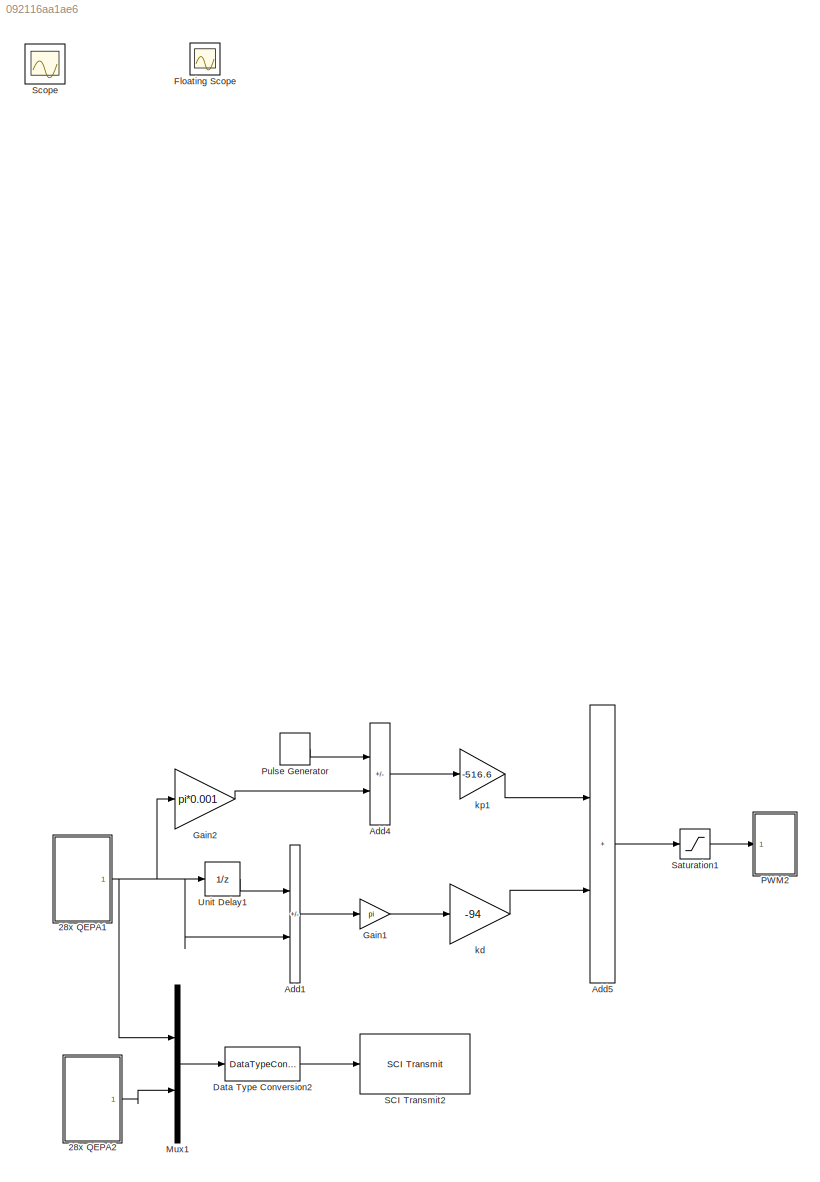
MODEL slx_092116aa1ae6
KIND model
CONFIG AbsTol = auto
CONFIG EnableMultiTasking = on
CONFIG FixedStep = 0.001
CONFIG MaxStep = auto
CONFIG MinStep = auto
CONFIG RelTol = 1e-3
CONFIG SampleTimeConstraint = Unconstrained
CONFIG Solver = FixedStepDiscrete
CONFIG SolverName = FixedStepDiscrete
CONFIG StartTime = 0
CONFIG StopTime = inf
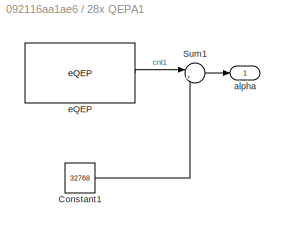
BLOCK [SubSystem] 28x QEPA1
  Ports = [0, 1]
  RequestExecContextInheritance = off
BLOCK [Constant] 28x QEPA1/Constant1
  Value = 32768
BLOCK [Sum] 28x QEPA1/Sum1
  Inputs = |+-
  Ports = [2, 1]
BLOCK [Outport] 28x QEPA1/alpha
BLOCK [Reference] 28x QEPA1/eQEP  REF=c280xlib/eQEP
  Ports = [0, 1]
  SourceBlock = c280xlib/eQEP
  SourceProductBaseCode = TIC2000
  SourceType = C28x eQEP
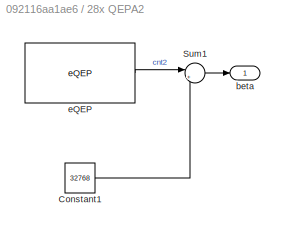
BLOCK [SubSystem] 28x QEPA2
  Ports = [0, 1]
  RequestExecContextInheritance = off
BLOCK [Constant] 28x QEPA2/Constant1
  Value = 32768
BLOCK [Sum] 28x QEPA2/Sum1
  Inputs = |+-
  Ports = [2, 1]
BLOCK [Outport] 28x QEPA2/beta
BLOCK [Reference] 28x QEPA2/eQEP  REF=c280xlib/eQEP
  Ports = [0, 1]
  SourceBlock = c280xlib/eQEP
  SourceProductBaseCode = TIC2000
  SourceType = C28x eQEP
BLOCK [Sum] Add1
  IconShape = rectangular
  Inputs = -+
  Ports = [2, 1]
  SampleTime = 0.001
BLOCK [Sum] Add4
  IconShape = rectangular
  Inputs = -+
  Ports = [2, 1]
  SampleTime = 0.001
BLOCK [Sum] Add5
  IconShape = rectangular
  Ports = [2, 1]
  SampleTime = 0.001
BLOCK [DataTypeConversion] Data Type Conversion2
  OutDataTypeStr = uint16
  RndMeth = Floor
  SampleTime = 0.001
  SaturateOnIntegerOverflow = off
BLOCK [Scope] Floating Scope
  Floating = off
  IOType = viewer
  NumInputPorts = 1
  Ports = []
  ScopeSpecificationString = C++SS(StrPVP('Location','[376, 294, 700, 533]'),StrPVP('Open','off'),MxPVP('AxesTitles',54,'struct(''axes1'',''%<SignalLabel>'')'),StrPVP('ShowLegends','off'),StrPVP('DataFormat','StructureWithTime'),StrPVP('LimitDataPoints','on'),StrPVP('Decimation','1'),StrPVP('BlockParamSampleInput','off'))
BLOCK [Gain] Gain1
  Gain = pi
  SampleTime = 0.001
BLOCK [Gain] Gain2
  Gain = pi*0.001
  SampleTime = 0.001
BLOCK [Mux] Mux1
  DisplayOption = bar
  Inputs = 2
  Ports = [2, 1]
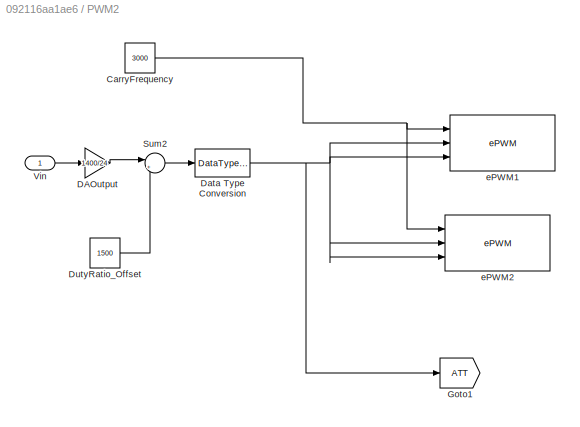
BLOCK [SubSystem] PWM2
  Ports = [1]
  RequestExecContextInheritance = off
BLOCK [Constant] PWM2/CarryFrequency
  OutDataTypeStr = uint16
  Value = 3000
BLOCK [Gain] PWM2/DAOutput
  Gain = 1400/24
  OutDataTypeStr = Inherit: Same as input
  ParamDataTypeStr = Inherit: Same as input
  SaturateOnIntegerOverflow = on
BLOCK [DataTypeConversion] PWM2/Data Type Conversion
BLOCK [Constant] PWM2/DutyRatio_Offset
  Value = 1500
BLOCK [Goto] PWM2/Goto1
  GotoTag = ATT
  TagVisibility = global
BLOCK [Sum] PWM2/Sum2
  Inputs = |++
  Ports = [2, 1]
  SaturateOnIntegerOverflow = on
BLOCK [Inport] PWM2/Vin
BLOCK [Reference] PWM2/ePWM1  REF=c280xlib/ePWM
  Ports = [3]
  SourceBlock = c280xlib/ePWM
  SourceProductBaseCode = TIC2000
  SourceType = C280x/C2833x ePWM
BLOCK [Reference] PWM2/ePWM2  REF=c280xlib/ePWM
  Ports = [3]
  SourceBlock = c280xlib/ePWM
  SourceProductBaseCode = TIC2000
  SourceType = C280x/C2833x ePWM
BLOCK [DiscretePulseGenerator] Pulse Generator
  Amplitude = 5
  Period = 5
  Ports = [0, 1]
  PulseType = Time based
  PulseWidth = 50
BLOCK [Reference] SCI Transmit2  REF=c280xlib/SCI Transmit
  Ports = [1]
  SourceBlock = c280xlib/SCI Transmit
  SourceProductBaseCode = TIC2000
  SourceType = C28x SCI Transmit
BLOCK [Saturate] Saturation1
  LowerLimit = -12
  SampleTime = 0.001
  UpperLimit = 12
BLOCK [Scope] Scope
  Floating = off
  IOType = viewer
  NumInputPorts = 1
  Ports = []
  ScopeSpecificationString = C++SS(StrPVP('Location','[188, 365, 512, 604]'),StrPVP('Open','off'),MxPVP('AxesTitles',54,'struct(''axes1'',''%<SignalLabel>'')'),StrPVP('ShowDataMarkers','off'),StrPVP('ShowLegends','off'),StrPVP('MaxDataPoints','7500'),StrPVP('LimitDataPoints','on'),StrPVP('DataFormat','Array'),StrPVP('Decimation','1'),StrPVP('BlockParamSampleInput','off'))
BLOCK [UnitDelay] Unit Delay1
  HasFrameUpgradeWarning = on
  SampleTime = 0.001
BLOCK [Gain] kd
  Gain = -94
  SampleTime = 0.001
BLOCK [Gain] kp1
  Gain = -516.6
  SampleTime = 0.001
LINE 28x QEPA1/Constant1:1 -> 28x QEPA1/Sum1:2
LINE 28x QEPA1/Sum1:1 -> 28x QEPA1/alpha:1
LINE 28x QEPA1/eQEP:1 -> 28x QEPA1/Sum1:1
NET 28x QEPA1:1 -> Add1:2, Gain2:1, Mux1:1, Unit Delay1:1
LINE 28x QEPA2/Constant1:1 -> 28x QEPA2/Sum1:2
LINE 28x QEPA2/Sum1:1 -> 28x QEPA2/beta:1
LINE 28x QEPA2/eQEP:1 -> 28x QEPA2/Sum1:1
LINE 28x QEPA2:1 -> Mux1:2
LINE Add1:1 -> Gain1:1
LINE Add4:1 -> kp1:1
LINE Add5:1 -> Saturation1:1
LINE Data Type Conversion2:1 -> SCI Transmit2:1
LINE Gain1:1 -> kd:1
LINE Gain2:1 -> Add4:2
LINE Mux1:1 -> Data Type Conversion2:1
NET PWM2/CarryFrequency:1 -> PWM2/ePWM1:1, PWM2/ePWM2:1
LINE PWM2/DAOutput:1 -> PWM2/Sum2:1
NET PWM2/Data Type Conversion:1 -> PWM2/Goto1:1, PWM2/ePWM1:2, PWM2/ePWM1:3, PWM2/ePWM2:2, PWM2/ePWM2:3
LINE PWM2/DutyRatio_Offset:1 -> PWM2/Sum2:2
LINE PWM2/Sum2:1 -> PWM2/Data Type Conversion:1
LINE PWM2/Vin:1 -> PWM2/DAOutput:1
LINE Pulse Generator:1 -> Add4:1
LINE Saturation1:1 -> PWM2:1
LINE Unit Delay1:1 -> Add1:1
LINE kd:1 -> Add5:2
LINE kp1:1 -> Add5:1
note: NET lines group one-source signal fan-out (src -> all destinations, sorted); 1:1 wires keep LINE
